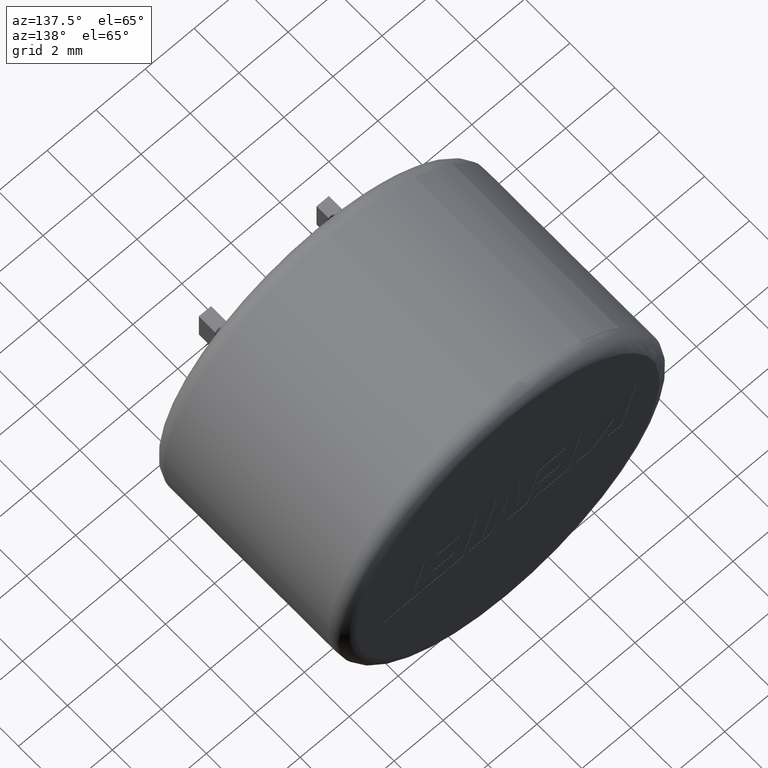
[diagram: clean part render]
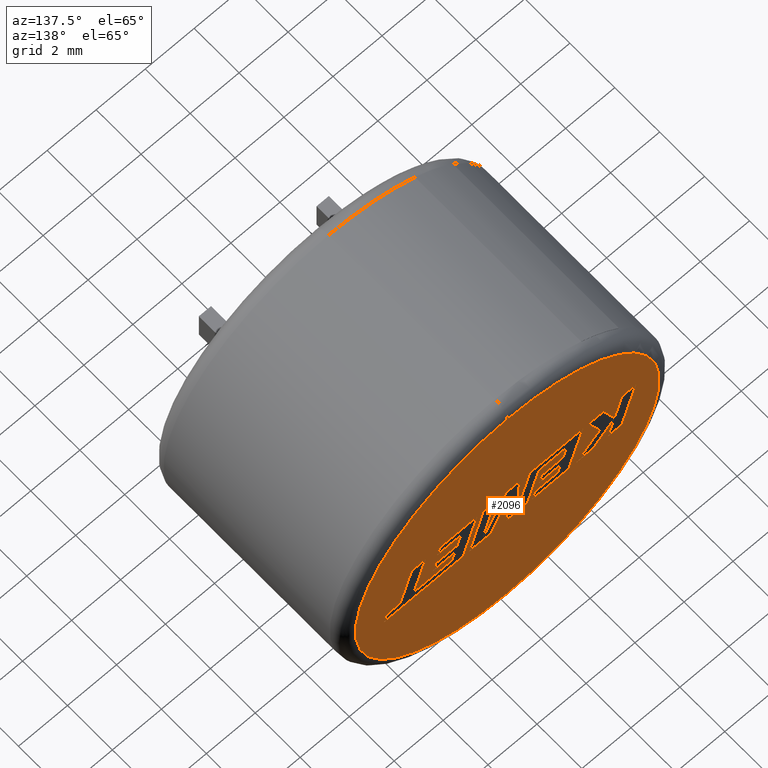
[diagram: same view with one face highlighted and labeled with its STEP entity id]
A machine part, auxiliary view. The second image highlights one B-rep face of the part: STEP entity #2096.
In plain terms, the highlighted planar face has unit normal (0, 1, 0).
Its self-contained STEP definition (entity closure, byte-faithful):
#7 = ORIENTED_EDGE ( 'NONE', *, *, #1679, .F. ) ;
#8 = DIRECTION ( 'NONE',  ( 0.2763139702539117400, 0.0000000000000000000, -0.9610674221107072800 ) ) ;
#12 = EDGE_CURVE ( 'NONE', #220, #1411, #1915, .T. ) ;
#22 = EDGE_CURVE ( 'NONE', #595, #2371, #1744, .T. ) ;
#23 = DIRECTION ( 'NONE',  ( 0.0000000000000000000, 1.000000000000000000, 0.0000000000000000000 ) ) ;
#24 = ORIENTED_EDGE ( 'NONE', *, *, #1531, .F. ) ;
#26 = CARTESIAN_POINT ( 'NONE',  ( -2.259736175507299100, 8.500000000000000000, 0.1683628157939400200 ) ) ;
#27 = VECTOR ( 'NONE', #712, 1000.000000000000000 ) ;
#32 = LINE ( 'NONE', #1663, #432 ) ;
#33 = VECTOR ( 'NONE', #839, 1000.000000000000000 ) ;
#41 = EDGE_CURVE ( 'NONE', #2371, #677, #648, .T. ) ;
#43 = EDGE_LOOP ( 'NONE', ( #513, #146, #649, #758, #958, #1059, #2699, #1587, #1551, #556, #1929 ) ) ;
#47 = ORIENTED_EDGE ( 'NONE', *, *, #799, .F. ) ;
#53 = CARTESIAN_POINT ( 'NONE',  ( 1.227090569557494300, 8.500000000000000000, 1.053028994543904900 ) ) ;
#60 = EDGE_CURVE ( 'NONE', #825, #579, #209, .T. ) ;
#66 = CARTESIAN_POINT ( 'NONE',  ( -3.311272758248907000, 8.500000000000000000, 1.053028994543904900 ) ) ;
#72 = CARTESIAN_POINT ( 'NONE',  ( -2.044280021955986900, 8.500000000000000000, -0.5793581909814401500 ) ) ;
#73 = VECTOR ( 'NONE', #1421, 999.9999999999998900 ) ;
#78 = VECTOR ( 'NONE', #1775, 1000.000000000000000 ) ;
#81 = VECTOR ( 'NONE', #477, 1000.000000000000000 ) ;
#87 = CARTESIAN_POINT ( 'NONE',  ( 1.227090569557494300, 8.500000000000000000, 1.053028994543904900 ) ) ;
#91 = VERTEX_POINT ( 'NONE', #1576 ) ;
#107 = FACE_BOUND ( 'NONE', #350, .T. ) ;
#109 = CARTESIAN_POINT ( 'NONE',  ( -4.097731242331414100, 8.500000000000000000, -0.9631222229663523000 ) ) ;
#112 = VECTOR ( 'NONE', #2268, 1000.000000000000100 ) ;
#120 = CARTESIAN_POINT ( 'NONE',  ( 2.053187690916773900, 8.500000000000000000, 0.1683628157980141300 ) ) ;
#124 = DIRECTION ( 'NONE',  ( 1.000000000000000000, 0.0000000000000000000, -2.847054813160298500E-016 ) ) ;
#130 = LINE ( 'NONE', #2069, #1550 ) ;
#131 = VERTEX_POINT ( 'NONE', #2030 ) ;
#132 = CARTESIAN_POINT ( 'NONE',  ( -3.924721411668132800, 8.500000000000000000, 1.053028994543904900 ) ) ;
#140 = LINE ( 'NONE', #1451, #2213 ) ;
#146 = ORIENTED_EDGE ( 'NONE', *, *, #852, .F. ) ;
#151 = CARTESIAN_POINT ( 'NONE',  ( 2.268643844463263300, 8.500000000000000000, -0.5792907574821812800 ) ) ;
#172 = EDGE_CURVE ( 'NONE', #516, #1856, #2187, .T. ) ;
#173 = ORIENTED_EDGE ( 'NONE', *, *, #2123, .F. ) ;
#182 = CARTESIAN_POINT ( 'NONE',  ( -2.153399680898977000, 8.500000000000000000, -0.2043543833022431500 ) ) ;
#187 = ORIENTED_EDGE ( 'NONE', *, *, #2375, .F. ) ;
#188 = EDGE_CURVE ( 'NONE', #677, #1248, #2728, .T. ) ;
#189 = CARTESIAN_POINT ( 'NONE',  ( -3.487335487235283500, 8.500000000000000000, -0.9631222229663523000 ) ) ;
#196 = CARTESIAN_POINT ( 'NONE',  ( 0.4721173966834419400, 8.500000000000000000, 1.053028994543904900 ) ) ;
#197 = LINE ( 'NONE', #1519, #2520 ) ;
#207 = DIRECTION ( 'NONE',  ( -0.05596501978067570900, 0.0000000000000000000, 0.9984327301130249100 ) ) ;
#209 = LINE ( 'NONE', #2166, #78 ) ;
#210 = VERTEX_POINT ( 'NONE', #132 ) ;
#213 = EDGE_CURVE ( 'NONE', #232, #2195, #990, .T. ) ;
#217 = CARTESIAN_POINT ( 'NONE',  ( -2.153399680898977000, 8.500000000000000000, -0.2043543833022431500 ) ) ;
#220 = VERTEX_POINT ( 'NONE', #1203 ) ;
#225 = CARTESIAN_POINT ( 'NONE',  ( -0.3989456066037058200, 8.500000000000000000, -0.7418974402618798700 ) ) ;
#231 = DIRECTION ( 'NONE',  ( 0.9999999968487352000, 0.0000000000000000000, 7.938847109754407800E-005 ) ) ;
#232 = VERTEX_POINT ( 'NONE', #151 ) ;
#233 = DIRECTION ( 'NONE',  ( 0.0000000000000000000, 0.0000000000000000000, 1.000000000000000000 ) ) ;
#247 = DIRECTION ( 'NONE',  ( 0.0000000000000000000, 1.000000000000000000, 0.0000000000000000000 ) ) ;
#261 = VECTOR ( 'NONE', #822, 1000.000000000000000 ) ;
#263 = LINE ( 'NONE', #66, #1881 ) ;
#266 = VERTEX_POINT ( 'NONE', #583 ) ;
#286 = DIRECTION ( 'NONE',  ( 1.000000000000000000, -0.0000000000000000000, -0.0000000000000000000 ) ) ;
#288 = LINE ( 'NONE', #2285, #834 ) ;
#296 = CARTESIAN_POINT ( 'NONE',  ( 3.337746768091752500, 8.500000000000000000, 1.053028994543904200 ) ) ;
#300 = CARTESIAN_POINT ( 'NONE',  ( -1.288044003593056700, 8.500000000000000000, -0.2043543833022431500 ) ) ;
#306 = DIRECTION ( 'NONE',  ( 0.2759782365590740500, 0.0000000000000000000, -0.9611638845408954100 ) ) ;
#316 = VERTEX_POINT ( 'NONE', #1649 ) ;
#334 = VECTOR ( 'NONE', #384, 1000.000000000000000 ) ;
#350 = EDGE_LOOP ( 'NONE', ( #680, #1828, #1026, #1895, #2443, #716, #924, #173, #860, #2666, #2066, #1950, #7, #1083, #1356, #1935, #2432, #2336, #750, #2299, #187, #853, #1485 ) ) ;
#372 = VERTEX_POINT ( 'NONE', #1925 ) ;
#380 = FACE_OUTER_BOUND ( 'NONE', #1696, .T. ) ;
#384 = DIRECTION ( 'NONE',  ( 0.2729786930695173900, 0.0000000000000000000, -0.9620200793798735500 ) ) ;
#390 = VERTEX_POINT ( 'NONE', #1290 ) ;
#397 = VERTEX_POINT ( 'NONE', #2360 ) ;
#402 = LINE ( 'NONE', #182, #2349 ) ;
#403 = EDGE_CURVE ( 'NONE', #832, #1027, #672, .T. ) ;
#408 = VECTOR ( 'NONE', #1626, 1000.000000000000100 ) ;
#415 = ORIENTED_EDGE ( 'NONE', *, *, #2668, .F. ) ;
#417 = EDGE_CURVE ( 'NONE', #2767, #372, #2528, .T. ) ;
#426 = LINE ( 'NONE', #296, #2579 ) ;
#432 = VECTOR ( 'NONE', #1057, 1000.000000000000000 ) ;
#433 = VECTOR ( 'NONE', #1182, 1000.000000000000100 ) ;
#437 = DIRECTION ( 'NONE',  ( 0.3725077383644269700, -0.0000000000000000000, 0.9280290862136917300 ) ) ;
#477 = DIRECTION ( 'NONE',  ( 1.000000000000000000, 0.0000000000000000000, 0.0000000000000000000 ) ) ;
#486 = VECTOR ( 'NONE', #2292, 1000.000000000000000 ) ;
#505 = EDGE_CURVE ( 'NONE', #1351, #266, #1667, .T. ) ;
#513 = ORIENTED_EDGE ( 'NONE', *, *, #2627, .F. ) ;
#516 = VERTEX_POINT ( 'NONE', #1087 ) ;
#528 = AXIS2_PLACEMENT_3D ( 'NONE', #601, #1824, #1035 ) ;
#545 = DIRECTION ( 'NONE',  ( 0.4668459304955212000, 0.0000000000000000000, -0.8843386665637610300 ) ) ;
#549 = VERTEX_POINT ( 'NONE', #1511 ) ;
#556 = ORIENTED_EDGE ( 'NONE', *, *, #2323, .F. ) ;
#559 = CARTESIAN_POINT ( 'NONE',  ( -4.677904531710408900, 8.500000000000000000, 1.053028994543905300 ) ) ;
#568 = VECTOR ( 'NONE', #2636, 1000.000000000000000 ) ;
#574 = LINE ( 'NONE', #1398, #334 ) ;
#579 = VERTEX_POINT ( 'NONE', #932 ) ;
#581 = VECTOR ( 'NONE', #684, 1000.000000000000000 ) ;
#583 = CARTESIAN_POINT ( 'NONE',  ( 2.159524185522648100, 8.500000000000000000, -0.2042869498019199100 ) ) ;
#587 = ORIENTED_EDGE ( 'NONE', *, *, #651, .F. ) ;
#595 = VERTEX_POINT ( 'NONE', #2232 ) ;
#596 = VERTEX_POINT ( 'NONE', #109 ) ;
#598 = LINE ( 'NONE', #960, #1261 ) ;
#601 = CARTESIAN_POINT ( 'NONE',  ( 0.0000000000000000000, 8.500000000000000000, 0.0000000000000000000 ) ) ;
#607 = LINE ( 'NONE', #1030, #33 ) ;
#614 = DIRECTION ( 'NONE',  ( 0.2793947940878295200, 0.0000000000000000000, -0.9601763114327595000 ) ) ;
#619 = ORIENTED_EDGE ( 'NONE', *, *, #1546, .F. ) ;
#625 = EDGE_LOOP ( 'NONE', ( #635, #1675, #1903, #1249, #656, #2235, #2177, #47, #415, #619, #24, #587, #969, #1860, #683, #1417, #1366 ) ) ;
#635 = ORIENTED_EDGE ( 'NONE', *, *, #213, .F. ) ;
#648 = LINE ( 'NONE', #26, #81 ) ;
#649 = ORIENTED_EDGE ( 'NONE', *, *, #1431, .F. ) ;
#651 = EDGE_CURVE ( 'NONE', #1086, #2367, #1068, .T. ) ;
#656 = ORIENTED_EDGE ( 'NONE', *, *, #172, .F. ) ;
#659 = VERTEX_POINT ( 'NONE', #1805 ) ;
#672 = LINE ( 'NONE', #225, #1497 ) ;
#673 = CARTESIAN_POINT ( 'NONE',  ( 0.9900434363040663300, 8.500000000000000000, -0.7505411885221796600 ) ) ;
#677 = VERTEX_POINT ( 'NONE', #2224 ) ;
#680 = ORIENTED_EDGE ( 'NONE', *, *, #1481, .F. ) ;
#683 = ORIENTED_EDGE ( 'NONE', *, *, #1291, .F. ) ;
#684 = DIRECTION ( 'NONE',  ( -1.000000000000000000, 0.0000000000000000000, 2.506186073112944800E-016 ) ) ;
#687 = DIRECTION ( 'NONE',  ( 0.2740217765954067200, 0.0000000000000000000, -0.9617234872620595800 ) ) ;
#691 = CARTESIAN_POINT ( 'NONE',  ( 3.024744995834479400, 8.500000000000000000, -0.2042869498019201400 ) ) ;
#692 = DIRECTION ( 'NONE',  ( -1.000000000000000000, -0.0000000000000000000, -0.0000000000000000000 ) ) ;
#694 = ORIENTED_EDGE ( 'NONE', *, *, #1955, .T. ) ;
#695 = LINE ( 'NONE', #1984, #486 ) ;
#710 = CARTESIAN_POINT ( 'NONE',  ( -5.251205731465742800, 8.500000000000000000, 1.053028994543842500 ) ) ;
#712 = DIRECTION ( 'NONE',  ( 0.7145695586382339000, -0.0000000000000000000, -0.6995643972269883800 ) ) ;
#716 = ORIENTED_EDGE ( 'NONE', *, *, #1364, .F. ) ;
#750 = ORIENTED_EDGE ( 'NONE', *, *, #921, .F. ) ;
#758 = ORIENTED_EDGE ( 'NONE', *, *, #2530, .F. ) ;
#763 = DIRECTION ( 'NONE',  ( 0.2755520632520542200, -0.0000000000000000000, -0.9612861490927329100 ) ) ;
#770 = CARTESIAN_POINT ( 'NONE',  ( -4.097731242331414100, 8.500000000000000000, -0.9631222229663523000 ) ) ;
#783 = DIRECTION ( 'NONE',  ( -1.000000000000000000, 0.0000000000000000000, 0.0000000000000000000 ) ) ;
#799 = EDGE_CURVE ( 'NONE', #659, #844, #574, .T. ) ;
#819 = EDGE_CURVE ( 'NONE', #1411, #825, #140, .T. ) ;
#820 = CARTESIAN_POINT ( 'NONE',  ( 3.192556318522601800, 8.500000000000000000, -0.5766915026842742700 ) ) ;
#822 = DIRECTION ( 'NONE',  ( -1.000000000000000000, 0.0000000000000000000, 0.0000000000000000000 ) ) ;
#825 = VERTEX_POINT ( 'NONE', #2117 ) ;
#832 = VERTEX_POINT ( 'NONE', #1259 ) ;
#834 = VECTOR ( 'NONE', #2713, 1000.000000000000000 ) ;
#839 = DIRECTION ( 'NONE',  ( -1.000000000000000000, -0.0000000000000000000, -0.0000000000000000000 ) ) ;
#844 = VERTEX_POINT ( 'NONE', #2124 ) ;
#845 = FACE_BOUND ( 'NONE', #625, .T. ) ;
#852 = EDGE_CURVE ( 'NONE', #596, #2146, #607, .T. ) ;
#853 = ORIENTED_EDGE ( 'NONE', *, *, #1272, .F. ) ;
#860 = ORIENTED_EDGE ( 'NONE', *, *, #1327, .F. ) ;
#865 = LINE ( 'NONE', #2430, #27 ) ;
#878 = DIRECTION ( 'NONE',  ( 0.2732148821745903900, 0.0000000000000000000, -0.9619530280415592400 ) ) ;
#884 = CARTESIAN_POINT ( 'NONE',  ( 0.0000000000000000000, 8.500000000000000000, 0.0000000000000000000 ) ) ;
#887 = EDGE_CURVE ( 'NONE', #1580, #2568, #402, .T. ) ;
#892 = VERTEX_POINT ( 'NONE', #1051 ) ;
#896 = EDGE_CURVE ( 'NONE', #2366, #944, #1970, .T. ) ;
#902 = EDGE_CURVE ( 'NONE', #2195, #1380, #1015, .T. ) ;
#906 = CARTESIAN_POINT ( 'NONE',  ( -1.125700924485933100, 8.500000000000000000, -0.5793581909814401500 ) ) ;
#921 = EDGE_CURVE ( 'NONE', #2206, #595, #2647, .T. ) ;
#924 = ORIENTED_EDGE ( 'NONE', *, *, #403, .F. ) ;
#932 = CARTESIAN_POINT ( 'NONE',  ( -3.086335984546776600, 8.500000000000000000, 1.053028994543905700 ) ) ;
#938 = VECTOR ( 'NONE', #2539, 1000.000000000000200 ) ;
#939 = CARTESIAN_POINT ( 'NONE',  ( -0.9143214339711456300, 8.500000000000000000, 1.053028994543905300 ) ) ;
#944 = VERTEX_POINT ( 'NONE', #2555 ) ;
#945 = VECTOR ( 'NONE', #2638, 1000.000000000000000 ) ;
#958 = ORIENTED_EDGE ( 'NONE', *, *, #2016, .F. ) ;
#960 = CARTESIAN_POINT ( 'NONE',  ( 1.564110927417840000, 8.500000000000000000, -0.9631222229663527500 ) ) ;
#969 = ORIENTED_EDGE ( 'NONE', *, *, #1918, .F. ) ;
#976 = VECTOR ( 'NONE', #8, 1000.000000000000000 ) ;
#983 = CARTESIAN_POINT ( 'NONE',  ( 0.03793149982259607500, 8.500000000000000000, 1.053028994543905100 ) ) ;
#990 = LINE ( 'NONE', #1391, #73 ) ;
#1002 = CARTESIAN_POINT ( 'NONE',  ( -1.016703871901081000, 8.500000000000000000, -0.9631222229663523000 ) ) ;
#1003 = EDGE_CURVE ( 'NONE', #944, #2158, #1838, .T. ) ;
#1015 = LINE ( 'NONE', #1460, #938 ) ;
#1026 = ORIENTED_EDGE ( 'NONE', *, *, #896, .F. ) ;
#1027 = VERTEX_POINT ( 'NONE', #1091 ) ;
#1030 = CARTESIAN_POINT ( 'NONE',  ( -4.671798733445354100, 8.500000000000000000, -0.9631222229663523000 ) ) ;
#1035 = DIRECTION ( 'NONE',  ( 0.0000000000000000000, -0.0000000000000000000, 1.000000000000000000 ) ) ;
#1037 = VERTEX_POINT ( 'NONE', #1287 ) ;
#1040 = VECTOR ( 'NONE', #1072, 1000.000000000000100 ) ;
#1045 = CARTESIAN_POINT ( 'NONE',  ( 0.4721173966834419400, 8.500000000000000000, 1.053028994543904900 ) ) ;
#1051 = CARTESIAN_POINT ( 'NONE',  ( -3.311272758248907000, 8.500000000000000000, 1.053028994543904900 ) ) ;
#1057 = DIRECTION ( 'NONE',  ( -1.000000000000000000, 0.0000000000000000000, 5.050979426444720200E-016 ) ) ;
#1059 = ORIENTED_EDGE ( 'NONE', *, *, #1345, .F. ) ;
#1061 = AXIS2_PLACEMENT_3D ( 'NONE', #884, #23, #233 ) ;
#1062 = CARTESIAN_POINT ( 'NONE',  ( 4.931683720037595400, 8.500000000000000000, -0.5737970821254480000 ) ) ;
#1063 = VECTOR ( 'NONE', #692, 1000.000000000000000 ) ;
#1068 = LINE ( 'NONE', #2017, #433 ) ;
#1072 = DIRECTION ( 'NONE',  ( 0.2793947940814914300, 0.0000000000000000000, -0.9601763114346035800 ) ) ;
#1075 = EDGE_CURVE ( 'NONE', #1115, #210, #1429, .T. ) ;
#1083 = ORIENTED_EDGE ( 'NONE', *, *, #887, .F. ) ;
#1086 = VERTEX_POINT ( 'NONE', #1062 ) ;
#1087 = CARTESIAN_POINT ( 'NONE',  ( 2.053187690916773900, 8.500000000000000000, 0.1683628157980141300 ) ) ;
#1088 = EDGE_CURVE ( 'NONE', #1380, #549, #197, .T. ) ;
#1089 = VECTOR ( 'NONE', #2161, 999.9999999999998900 ) ;
#1091 = CARTESIAN_POINT ( 'NONE',  ( -0.4995563842746180700, 8.500000000000000000, 1.053028994543905300 ) ) ;
#1100 = EDGE_CURVE ( 'NONE', #266, #232, #1658, .T. ) ;
#1103 = VERTEX_POINT ( 'NONE', #1547 ) ;
#1115 = VERTEX_POINT ( 'NONE', #1967 ) ;
#1130 = CARTESIAN_POINT ( 'NONE',  ( -1.273190244891335900, 8.500000000000000000, 1.053028994543905300 ) ) ;
#1131 = VECTOR ( 'NONE', #2214, 1000.000000000000100 ) ;
#1134 = VECTOR ( 'NONE', #1988, 1000.000000000000100 ) ;
#1139 = CARTESIAN_POINT ( 'NONE',  ( -3.487335487235283500, 8.500000000000000000, -0.9631222229663523000 ) ) ;
#1166 = LINE ( 'NONE', #2488, #1693 ) ;
#1179 = CARTESIAN_POINT ( 'NONE',  ( -0.8156049229187412000, 8.500000000000000000, -0.9631222229663523000 ) ) ;
#1182 = DIRECTION ( 'NONE',  ( 0.2762033010288755300, 0.0000000000000000000, -0.9610992334305299400 ) ) ;
#1200 = CARTESIAN_POINT ( 'NONE',  ( 1.564110927417840000, 8.500000000000000000, -0.9631222229663527500 ) ) ;
#1203 = CARTESIAN_POINT ( 'NONE',  ( -1.125700924485933100, 8.500000000000000000, -0.5793581909814401500 ) ) ;
#1207 = EDGE_CURVE ( 'NONE', #1248, #1580, #1234, .T. ) ;
#1224 = EDGE_CURVE ( 'NONE', #1685, #516, #1726, .T. ) ;
#1234 = LINE ( 'NONE', #300, #1428 ) ;
#1237 = DIRECTION ( 'NONE',  ( 1.000000000000000000, -0.0000000000000000000, 1.096870650732911000E-013 ) ) ;
#1238 = VECTOR ( 'NONE', #545, 1000.000000000000200 ) ;
#1243 = CARTESIAN_POINT ( 'NONE',  ( -1.284868498917413500, 8.500000000000000000, 0.6694550024109757700 ) ) ;
#1248 = VERTEX_POINT ( 'NONE', #2194 ) ;
#1249 = ORIENTED_EDGE ( 'NONE', *, *, #1836, .F. ) ;
#1257 = LINE ( 'NONE', #559, #1484 ) ;
#1259 = CARTESIAN_POINT ( 'NONE',  ( -0.3989456066037058200, 8.500000000000000000, -0.7418974402618798700 ) ) ;
#1261 = VECTOR ( 'NONE', #783, 1000.000000000000000 ) ;
#1272 = EDGE_CURVE ( 'NONE', #131, #2765, #2714, .T. ) ;
#1275 = VECTOR ( 'NONE', #124, 1000.000000000000000 ) ;
#1277 = CARTESIAN_POINT ( 'NONE',  ( -2.823838918333584600, 8.500000000000000000, -0.9631222229663523000 ) ) ;
#1287 = CARTESIAN_POINT ( 'NONE',  ( -5.251205731465742800, 8.500000000000000000, 1.053028994543842500 ) ) ;
#1289 = CARTESIAN_POINT ( 'NONE',  ( 4.379680122707077800, 8.500000000000000000, -0.5738409048472185000 ) ) ;
#1290 = CARTESIAN_POINT ( 'NONE',  ( 0.03793149982259607500, 8.500000000000000000, 1.053028994543905100 ) ) ;
#1291 = EDGE_CURVE ( 'NONE', #549, #397, #426, .T. ) ;
#1293 = VERTEX_POINT ( 'NONE', #87 ) ;
#1304 = FACE_BOUND ( 'NONE', #43, .T. ) ;
#1327 = EDGE_CURVE ( 'NONE', #579, #91, #2238, .T. ) ;
#1328 = LINE ( 'NONE', #2248, #2399 ) ;
#1329 = CARTESIAN_POINT ( 'NONE',  ( -2.402511279821104600, 8.500000000000000000, 0.6694550024109757700 ) ) ;
#1344 = CARTESIAN_POINT ( 'NONE',  ( -3.765038890539953000, 8.500000000000000000, -0.04168639734653927600 ) ) ;
#1345 = EDGE_CURVE ( 'NONE', #1103, #2354, #865, .T. ) ;
#1347 = VECTOR ( 'NONE', #878, 999.9999999999998900 ) ;
#1351 = VERTEX_POINT ( 'NONE', #691 ) ;
#1356 = ORIENTED_EDGE ( 'NONE', *, *, #1207, .F. ) ;
#1364 = EDGE_CURVE ( 'NONE', #1027, #390, #1761, .T. ) ;
#1366 = ORIENTED_EDGE ( 'NONE', *, *, #902, .F. ) ;
#1380 = VERTEX_POINT ( 'NONE', #1537 ) ;
#1391 = CARTESIAN_POINT ( 'NONE',  ( 2.268643844463263300, 8.500000000000000000, -0.5792907574821812800 ) ) ;
#1396 = VECTOR ( 'NONE', #437, 1000.000000000000000 ) ;
#1398 = CARTESIAN_POINT ( 'NONE',  ( 2.750351965824065400, 8.500000000000000000, 1.053028994543904400 ) ) ;
#1411 = VERTEX_POINT ( 'NONE', #1002 ) ;
#1413 = VERTEX_POINT ( 'NONE', #2501 ) ;
#1417 = ORIENTED_EDGE ( 'NONE', *, *, #1088, .F. ) ;
#1418 = EDGE_CURVE ( 'NONE', #316, #2206, #1686, .T. ) ;
#1421 = DIRECTION ( 'NONE',  ( 0.9999960426590096500, 0.0000000000000000000, 0.002813301676022722900 ) ) ;
#1427 = CARTESIAN_POINT ( 'NONE',  ( 1.910155113253702200, 8.500000000000000000, 0.6693814386009966400 ) ) ;
#1428 = VECTOR ( 'NONE', #2395, 1000.000000000000000 ) ;
#1429 = LINE ( 'NONE', #1709, #1396 ) ;
#1431 = EDGE_CURVE ( 'NONE', #1452, #596, #1870, .T. ) ;
#1438 = LINE ( 'NONE', #53, #1275 ) ;
#1451 = CARTESIAN_POINT ( 'NONE',  ( -1.016703871901081000, 8.500000000000000000, -0.9631222229663523000 ) ) ;
#1452 = VERTEX_POINT ( 'NONE', #1801 ) ;
#1460 = CARTESIAN_POINT ( 'NONE',  ( 3.192556318522602200, 8.500000000000000000, -0.5766915026842742700 ) ) ;
#1472 = LINE ( 'NONE', #2227, #1134 ) ;
#1481 = EDGE_CURVE ( 'NONE', #2158, #1962, #598, .T. ) ;
#1484 = VECTOR ( 'NONE', #1237, 1000.000000000000000 ) ;
#1485 = ORIENTED_EDGE ( 'NONE', *, *, #2715, .F. ) ;
#1497 = VECTOR ( 'NONE', #207, 1000.000000000000100 ) ;
#1511 = CARTESIAN_POINT ( 'NONE',  ( 3.337746768091752500, 8.500000000000000000, 1.053028994543904200 ) ) ;
#1519 = CARTESIAN_POINT ( 'NONE',  ( 3.805490025235814100, 8.500000000000000000, -0.5738409048522489200 ) ) ;
#1531 = EDGE_CURVE ( 'NONE', #2367, #1413, #1328, .T. ) ;
#1537 = CARTESIAN_POINT ( 'NONE',  ( 3.805490025235814100, 8.500000000000000000, -0.5738409048522489200 ) ) ;
#1546 = EDGE_CURVE ( 'NONE', #1413, #1293, #695, .T. ) ;
#1547 = CARTESIAN_POINT ( 'NONE',  ( -3.765038890539953000, 8.500000000000000000, -0.04168639734653927600 ) ) ;
#1550 = VECTOR ( 'NONE', #2056, 1000.000000000000200 ) ;
#1551 = ORIENTED_EDGE ( 'NONE', *, *, #1075, .F. ) ;
#1561 = VECTOR ( 'NONE', #1673, 1000.000000000000000 ) ;
#1572 = PLANE ( 'NONE',  #528 ) ;
#1574 = VECTOR ( 'NONE', #687, 1000.000000000000200 ) ;
#1576 = CARTESIAN_POINT ( 'NONE',  ( -0.9143214339711456300, 8.500000000000000000, 1.053028994543905300 ) ) ;
#1579 = DIRECTION ( 'NONE',  ( -0.2762033010252001900, -0.0000000000000000000, 0.9610992334315862100 ) ) ;
#1580 = VERTEX_POINT ( 'NONE', #217 ) ;
#1587 = ORIENTED_EDGE ( 'NONE', *, *, #2054, .F. ) ;
#1618 = CARTESIAN_POINT ( 'NONE',  ( 4.379680122707077800, 8.500000000000000000, -0.5738409048472185000 ) ) ;
#1626 = DIRECTION ( 'NONE',  ( -0.4443210308329209000, 0.0000000000000000000, 0.8958676361826954900 ) ) ;
#1649 = CARTESIAN_POINT ( 'NONE',  ( -0.8156049229187412000, 8.500000000000000000, -0.9631222229663523000 ) ) ;
#1654 = LINE ( 'NONE', #2339, #1756 ) ;
#1658 = LINE ( 'NONE', #1923, #1040 ) ;
#1663 = CARTESIAN_POINT ( 'NONE',  ( 0.04300255174971300700, 8.500000000000000000, -0.9631222229663527500 ) ) ;
#1665 = LINE ( 'NONE', #1781, #945 ) ;
#1667 = LINE ( 'NONE', #2198, #581 ) ;
#1670 = VECTOR ( 'NONE', #231, 1000.000000000000100 ) ;
#1673 = DIRECTION ( 'NONE',  ( 1.000000000000000000, 0.0000000000000000000, -4.232393926185561900E-016 ) ) ;
#1675 = ORIENTED_EDGE ( 'NONE', *, *, #1100, .F. ) ;
#1679 = EDGE_CURVE ( 'NONE', #2568, #220, #288, .T. ) ;
#1685 = VERTEX_POINT ( 'NONE', #1427 ) ;
#1686 = LINE ( 'NONE', #1179, #2643 ) ;
#1693 = VECTOR ( 'NONE', #1884, 1000.000000000000000 ) ;
#1696 = EDGE_LOOP ( 'NONE', ( #694, #2122 ) ) ;
#1697 = LINE ( 'NONE', #1344, #1131 ) ;
#1700 = CARTESIAN_POINT ( 'NONE',  ( 5.043569033575890300, 8.500000000000000000, -0.9631222229663530800 ) ) ;
#1709 = CARTESIAN_POINT ( 'NONE',  ( -3.924721411668132800, 8.500000000000000000, 1.053028994543904900 ) ) ;
#1722 = CARTESIAN_POINT ( 'NONE',  ( 0.0000000000000000000, 8.500000000000000000, 0.0000000000000000000 ) ) ;
#1726 = LINE ( 'NONE', #1742, #1089 ) ;
#1730 = VECTOR ( 'NONE', #306, 1000.000000000000200 ) ;
#1737 = EDGE_CURVE ( 'NONE', #1037, #2073, #1257, .T. ) ;
#1742 = CARTESIAN_POINT ( 'NONE',  ( 1.910155113253702200, 8.500000000000000000, 0.6693814386009966400 ) ) ;
#1744 = LINE ( 'NONE', #1329, #1574 ) ;
#1754 = CARTESIAN_POINT ( 'NONE',  ( -4.677904531710408900, 8.500000000000000000, 1.053028994543905300 ) ) ;
#1756 = VECTOR ( 'NONE', #2347, 1000.000000000000000 ) ;
#1761 = LINE ( 'NONE', #2644, #2517 ) ;
#1775 = DIRECTION ( 'NONE',  ( -0.2765379750249959400, 0.0000000000000000000, 0.9610029908221278100 ) ) ;
#1780 = DIRECTION ( 'NONE',  ( 1.000000000000000000, 0.0000000000000000000, -3.775570415932256000E-016 ) ) ;
#1781 = CARTESIAN_POINT ( 'NONE',  ( 2.859214151411832100, 8.500000000000000000, 0.6693814386009964100 ) ) ;
#1786 = EDGE_CURVE ( 'NONE', #2437, #2366, #130, .T. ) ;
#1801 = CARTESIAN_POINT ( 'NONE',  ( -4.344182283275985800, 8.500000000000000000, -0.1033573956103139300 ) ) ;
#1805 = CARTESIAN_POINT ( 'NONE',  ( 2.750351965824065400, 8.500000000000000000, 1.053028994543904400 ) ) ;
#1812 = CARTESIAN_POINT ( 'NONE',  ( -4.671798733445354100, 8.500000000000000000, -0.9631222229663523000 ) ) ;
#1824 = DIRECTION ( 'NONE',  ( 0.0000000000000000000, 1.000000000000000000, 0.0000000000000000000 ) ) ;
#1828 = ORIENTED_EDGE ( 'NONE', *, *, #1003, .F. ) ;
#1829 = CARTESIAN_POINT ( 'NONE',  ( 0.6798407158200340300, 8.500000000000000000, -0.9631222229663527500 ) ) ;
#1836 = EDGE_CURVE ( 'NONE', #1856, #1351, #1654, .T. ) ;
#1838 = LINE ( 'NONE', #2578, #976 ) ;
#1856 = VERTEX_POINT ( 'NONE', #2380 ) ;
#1860 = ORIENTED_EDGE ( 'NONE', *, *, #2271, .F. ) ;
#1870 = LINE ( 'NONE', #770, #1964 ) ;
#1881 = VECTOR ( 'NONE', #286, 1000.000000000000000 ) ;
#1884 = DIRECTION ( 'NONE',  ( 0.2762437428917315400, 0.0000000000000000000, -0.9610876102172824000 ) ) ;
#1894 = CARTESIAN_POINT ( 'NONE',  ( -2.259736175507299100, 8.500000000000000000, 0.1683628157939400200 ) ) ;
#1895 = ORIENTED_EDGE ( 'NONE', *, *, #1786, .F. ) ;
#1898 = CIRCLE ( 'NONE', #1905, 6.201749999999999700 ) ;
#1903 = ORIENTED_EDGE ( 'NONE', *, *, #505, .F. ) ;
#1905 = AXIS2_PLACEMENT_3D ( 'NONE', #1722, #247, #2368 ) ;
#1915 = LINE ( 'NONE', #906, #1347 ) ;
#1918 = EDGE_CURVE ( 'NONE', #2762, #1086, #2698, .T. ) ;
#1923 = CARTESIAN_POINT ( 'NONE',  ( 2.159524185522648100, 8.500000000000000000, -0.2042869498019199100 ) ) ;
#1925 = CARTESIAN_POINT ( 'NONE',  ( 0.0000000000000000000, 8.500000000000000000, 6.201749999999999700 ) ) ;
#1929 = ORIENTED_EDGE ( 'NONE', *, *, #1737, .F. ) ;
#1935 = ORIENTED_EDGE ( 'NONE', *, *, #188, .F. ) ;
#1950 = ORIENTED_EDGE ( 'NONE', *, *, #12, .F. ) ;
#1955 = EDGE_CURVE ( 'NONE', #372, #2767, #1898, .T. ) ;
#1962 = VERTEX_POINT ( 'NONE', #2616 ) ;
#1964 = VECTOR ( 'NONE', #763, 1000.000000000000100 ) ;
#1967 = CARTESIAN_POINT ( 'NONE',  ( -4.364136469712908800, 8.500000000000000000, -0.04168639734652045800 ) ) ;
#1970 = LINE ( 'NONE', #1045, #1561 ) ;
#1984 = CARTESIAN_POINT ( 'NONE',  ( 1.807006385584198200, 8.500000000000000000, -0.9631222229663527500 ) ) ;
#1988 = DIRECTION ( 'NONE',  ( -0.7059037656364859400, -0.0000000000000000000, 0.7083077534943613700 ) ) ;
#1991 = DIRECTION ( 'NONE',  ( 0.05375259206908298400, 0.0000000000000000000, -0.9985542843760947300 ) ) ;
#2008 = LINE ( 'NONE', #939, #1730 ) ;
#2016 = EDGE_CURVE ( 'NONE', #2354, #2409, #2093, .T. ) ;
#2017 = CARTESIAN_POINT ( 'NONE',  ( 4.931683720037595400, 8.500000000000000000, -0.5737970821254480000 ) ) ;
#2030 = CARTESIAN_POINT ( 'NONE',  ( -0.03453285888950724500, 8.500000000000000000, 0.4772421111879622800 ) ) ;
#2049 = EDGE_CURVE ( 'NONE', #892, #1103, #1697, .T. ) ;
#2050 = CARTESIAN_POINT ( 'NONE',  ( 0.04300255174971300700, 8.500000000000000000, -0.9631222229663527500 ) ) ;
#2054 = EDGE_CURVE ( 'NONE', #210, #892, #263, .T. ) ;
#2056 = DIRECTION ( 'NONE',  ( -0.2760118818968560500, 0.0000000000000000000, 0.9611542233438689100 ) ) ;
#2066 = ORIENTED_EDGE ( 'NONE', *, *, #819, .F. ) ;
#2069 = CARTESIAN_POINT ( 'NONE',  ( 0.9900434363040663300, 8.500000000000000000, -0.7505411885221796600 ) ) ;
#2071 = EDGE_CURVE ( 'NONE', #844, #1685, #1665, .T. ) ;
#2073 = VERTEX_POINT ( 'NONE', #1754 ) ;
#2093 = LINE ( 'NONE', #1139, #1063 ) ;
#2096 = ADVANCED_FACE ( 'NONE', ( #845, #107, #1304, #380 ), #1572, .T. ) ;
#2117 = CARTESIAN_POINT ( 'NONE',  ( -2.506168825485704900, 8.500000000000000000, -0.9631222229663520800 ) ) ;
#2118 = LINE ( 'NONE', #1829, #408 ) ;
#2122 = ORIENTED_EDGE ( 'NONE', *, *, #417, .T. ) ;
#2123 = EDGE_CURVE ( 'NONE', #91, #832, #2008, .T. ) ;
#2124 = CARTESIAN_POINT ( 'NONE',  ( 2.859214151411832100, 8.500000000000000000, 0.6693814386009964100 ) ) ;
#2130 = CARTESIAN_POINT ( 'NONE',  ( -4.364136469712908800, 8.500000000000000000, -0.04168639734652045800 ) ) ;
#2136 = VECTOR ( 'NONE', #1991, 1000.000000000000100 ) ;
#2140 = DIRECTION ( 'NONE',  ( -0.2763173343569915700, 0.0000000000000000000, 0.9610664548998921800 ) ) ;
#2146 = VERTEX_POINT ( 'NONE', #1812 ) ;
#2158 = VERTEX_POINT ( 'NONE', #1200 ) ;
#2161 = DIRECTION ( 'NONE',  ( 0.2745159998572669300, 0.0000000000000000000, -0.9615825319869143500 ) ) ;
#2166 = CARTESIAN_POINT ( 'NONE',  ( -2.506168825485704900, 8.500000000000000000, -0.9631222229663520800 ) ) ;
#2176 = EDGE_CURVE ( 'NONE', #390, #2437, #2718, .T. ) ;
#2177 = ORIENTED_EDGE ( 'NONE', *, *, #2071, .F. ) ;
#2187 = LINE ( 'NONE', #120, #2295 ) ;
#2194 = CARTESIAN_POINT ( 'NONE',  ( -1.288044003593056700, 8.500000000000000000, -0.2043543833022431500 ) ) ;
#2195 = VERTEX_POINT ( 'NONE', #820 ) ;
#2198 = CARTESIAN_POINT ( 'NONE',  ( 3.024744995834479400, 8.500000000000000000, -0.2042869498019201400 ) ) ;
#2206 = VERTEX_POINT ( 'NONE', #2744 ) ;
#2213 = VECTOR ( 'NONE', #2745, 1000.000000000000000 ) ;
#2214 = DIRECTION ( 'NONE',  ( -0.3829140317376766900, -0.0000000000000000000, -0.9237839814038764100 ) ) ;
#2223 = DIRECTION ( 'NONE',  ( 1.000000000000000000, 0.0000000000000000000, -4.034331580539989700E-016 ) ) ;
#2224 = CARTESIAN_POINT ( 'NONE',  ( -1.394503104559656100, 8.500000000000000000, 0.1683628157939400200 ) ) ;
#2227 = CARTESIAN_POINT ( 'NONE',  ( -4.344182283275985800, 8.500000000000000000, -0.1033573956103139300 ) ) ;
#2232 = CARTESIAN_POINT ( 'NONE',  ( -2.402511279821104600, 8.500000000000000000, 0.6694550024109757700 ) ) ;
#2235 = ORIENTED_EDGE ( 'NONE', *, *, #1224, .F. ) ;
#2238 = LINE ( 'NONE', #1130, #568 ) ;
#2244 = VECTOR ( 'NONE', #2571, 1000.000000000000100 ) ;
#2248 = CARTESIAN_POINT ( 'NONE',  ( 3.303711244630005400, 8.500000000000000000, -0.9631222229663528600 ) ) ;
#2259 = DIRECTION ( 'NONE',  ( -0.2762517575166151300, 0.0000000000000000000, 0.9610853065513910200 ) ) ;
#2268 = DIRECTION ( 'NONE',  ( 0.2746459304916897800, 0.0000000000000000000, -0.9615454294334480100 ) ) ;
#2270 = DIRECTION ( 'NONE',  ( -1.000000000000000000, 0.0000000000000000000, 1.448785531673512200E-016 ) ) ;
#2271 = EDGE_CURVE ( 'NONE', #397, #2762, #1166, .T. ) ;
#2285 = CARTESIAN_POINT ( 'NONE',  ( -2.044280021955986900, 8.500000000000000000, -0.5793581909814401500 ) ) ;
#2292 = DIRECTION ( 'NONE',  ( -0.2764273280489769100, 0.0000000000000000000, 0.9610348236706635100 ) ) ;
#2295 = VECTOR ( 'NONE', #2693, 1000.000000000000000 ) ;
#2299 = ORIENTED_EDGE ( 'NONE', *, *, #1418, .F. ) ;
#2323 = EDGE_CURVE ( 'NONE', #2073, #1115, #2445, .T. ) ;
#2336 = ORIENTED_EDGE ( 'NONE', *, *, #22, .F. ) ;
#2339 = CARTESIAN_POINT ( 'NONE',  ( 2.918285894870225900, 8.500000000000000000, 0.1683628157980139000 ) ) ;
#2347 = DIRECTION ( 'NONE',  ( 0.2746918797667231600, 0.0000000000000000000, -0.9615323037684299100 ) ) ;
#2349 = VECTOR ( 'NONE', #614, 999.9999999999998900 ) ;
#2354 = VERTEX_POINT ( 'NONE', #1277 ) ;
#2360 = CARTESIAN_POINT ( 'NONE',  ( 3.912071732558238600, 8.500000000000000000, 1.053028994543904000 ) ) ;
#2366 = VERTEX_POINT ( 'NONE', #196 ) ;
#2367 = VERTEX_POINT ( 'NONE', #1700 ) ;
#2368 = DIRECTION ( 'NONE',  ( 0.0000000000000000000, 0.0000000000000000000, 1.000000000000000000 ) ) ;
#2371 = VERTEX_POINT ( 'NONE', #1894 ) ;
#2375 = EDGE_CURVE ( 'NONE', #2765, #316, #32, .T. ) ;
#2380 = CARTESIAN_POINT ( 'NONE',  ( 2.918285894870225900, 8.500000000000000000, 0.1683628157980139000 ) ) ;
#2395 = DIRECTION ( 'NONE',  ( -1.000000000000000000, 0.0000000000000000000, 0.0000000000000000000 ) ) ;
#2399 = VECTOR ( 'NONE', #2270, 1000.000000000000000 ) ;
#2409 = VERTEX_POINT ( 'NONE', #189 ) ;
#2430 = CARTESIAN_POINT ( 'NONE',  ( -2.823838918333584600, 8.500000000000000000, -0.9631222229663523000 ) ) ;
#2432 = ORIENTED_EDGE ( 'NONE', *, *, #41, .F. ) ;
#2437 = VERTEX_POINT ( 'NONE', #673 ) ;
#2443 = ORIENTED_EDGE ( 'NONE', *, *, #2176, .F. ) ;
#2445 = LINE ( 'NONE', #2130, #2244 ) ;
#2488 = CARTESIAN_POINT ( 'NONE',  ( 3.912071732558238600, 8.500000000000000000, 1.053028994543904000 ) ) ;
#2501 = CARTESIAN_POINT ( 'NONE',  ( 1.807006385584198200, 8.500000000000000000, -0.9631222229663527500 ) ) ;
#2508 = CARTESIAN_POINT ( 'NONE',  ( -1.394503104559656100, 8.500000000000000000, 0.1683628157939400200 ) ) ;
#2517 = VECTOR ( 'NONE', #2223, 1000.000000000000000 ) ;
#2520 = VECTOR ( 'NONE', #2140, 1000.000000000000200 ) ;
#2528 = CIRCLE ( 'NONE', #1061, 6.201749999999999700 ) ;
#2530 = EDGE_CURVE ( 'NONE', #2409, #1452, #1472, .T. ) ;
#2539 = DIRECTION ( 'NONE',  ( 0.9999891854650020400, 0.0000000000000000000, 0.004650693823678137000 ) ) ;
#2555 = CARTESIAN_POINT ( 'NONE',  ( 0.9844525863630282400, 8.500000000000000000, 1.053028994543904600 ) ) ;
#2568 = VERTEX_POINT ( 'NONE', #72 ) ;
#2571 = DIRECTION ( 'NONE',  ( 0.2755265765475025100, -0.0000000000000000000, -0.9612934544747577800 ) ) ;
#2578 = CARTESIAN_POINT ( 'NONE',  ( 0.9844525863630282400, 8.500000000000000000, 1.053028994543904600 ) ) ;
#2579 = VECTOR ( 'NONE', #1780, 1000.000000000000000 ) ;
#2591 = LINE ( 'NONE', #710, #2620 ) ;
#2616 = CARTESIAN_POINT ( 'NONE',  ( 0.6798407158200339100, 8.500000000000000000, -0.9631222229663525300 ) ) ;
#2620 = VECTOR ( 'NONE', #1579, 1000.000000000000100 ) ;
#2624 = CARTESIAN_POINT ( 'NONE',  ( -0.03453285888950724500, 8.500000000000000000, 0.4772421111879622800 ) ) ;
#2627 = EDGE_CURVE ( 'NONE', #2146, #1037, #2591, .T. ) ;
#2636 = DIRECTION ( 'NONE',  ( 1.000000000000000000, 0.0000000000000000000, 0.0000000000000000000 ) ) ;
#2638 = DIRECTION ( 'NONE',  ( -1.000000000000000000, 0.0000000000000000000, 2.284793946200968400E-016 ) ) ;
#2643 = VECTOR ( 'NONE', #2259, 1000.000000000000100 ) ;
#2644 = CARTESIAN_POINT ( 'NONE',  ( -0.4995563842746180700, 8.500000000000000000, 1.053028994543905300 ) ) ;
#2647 = LINE ( 'NONE', #1243, #261 ) ;
#2666 = ORIENTED_EDGE ( 'NONE', *, *, #60, .F. ) ;
#2668 = EDGE_CURVE ( 'NONE', #1293, #659, #1438, .T. ) ;
#2683 = CARTESIAN_POINT ( 'NONE',  ( 7.930659590428366300E-016, 8.500000000000000000, -6.201749999999999700 ) ) ;
#2693 = DIRECTION ( 'NONE',  ( 1.000000000000000000, 0.0000000000000000000, -2.506541263247940100E-016 ) ) ;
#2698 = LINE ( 'NONE', #1289, #1670 ) ;
#2699 = ORIENTED_EDGE ( 'NONE', *, *, #2049, .F. ) ;
#2713 = DIRECTION ( 'NONE',  ( 1.000000000000000000, 0.0000000000000000000, 0.0000000000000000000 ) ) ;
#2714 = LINE ( 'NONE', #2624, #2136 ) ;
#2715 = EDGE_CURVE ( 'NONE', #1962, #131, #2118, .T. ) ;
#2718 = LINE ( 'NONE', #983, #1238 ) ;
#2728 = LINE ( 'NONE', #2508, #112 ) ;
#2744 = CARTESIAN_POINT ( 'NONE',  ( -1.284868498917413500, 8.500000000000000000, 0.6694550024109757700 ) ) ;
#2745 = DIRECTION ( 'NONE',  ( -1.000000000000000000, 0.0000000000000000000, 1.455827704943586500E-016 ) ) ;
#2762 = VERTEX_POINT ( 'NONE', #1618 ) ;
#2765 = VERTEX_POINT ( 'NONE', #2050 ) ;
#2767 = VERTEX_POINT ( 'NONE', #2683 ) ;